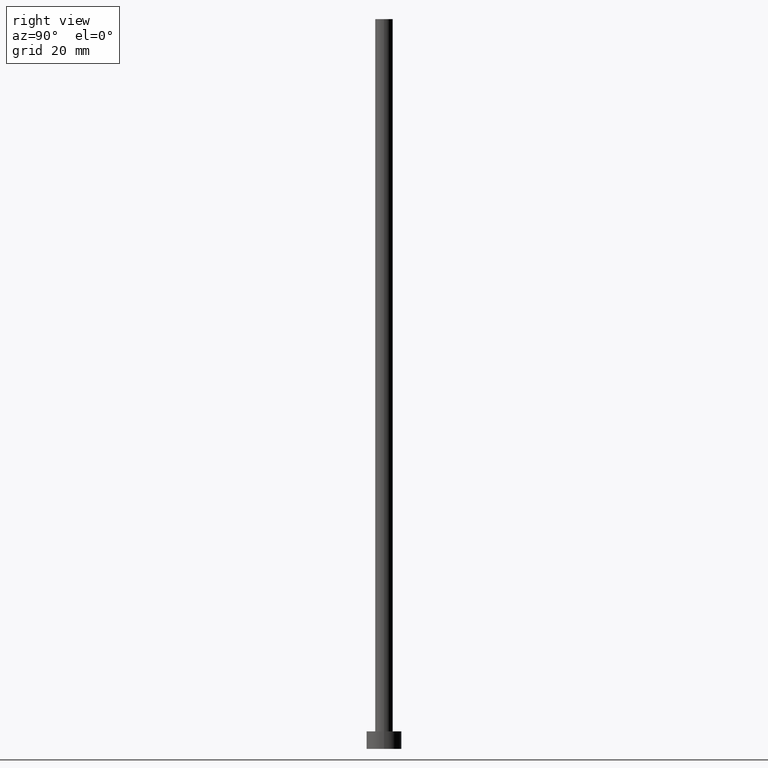
[diagram: clean part render]
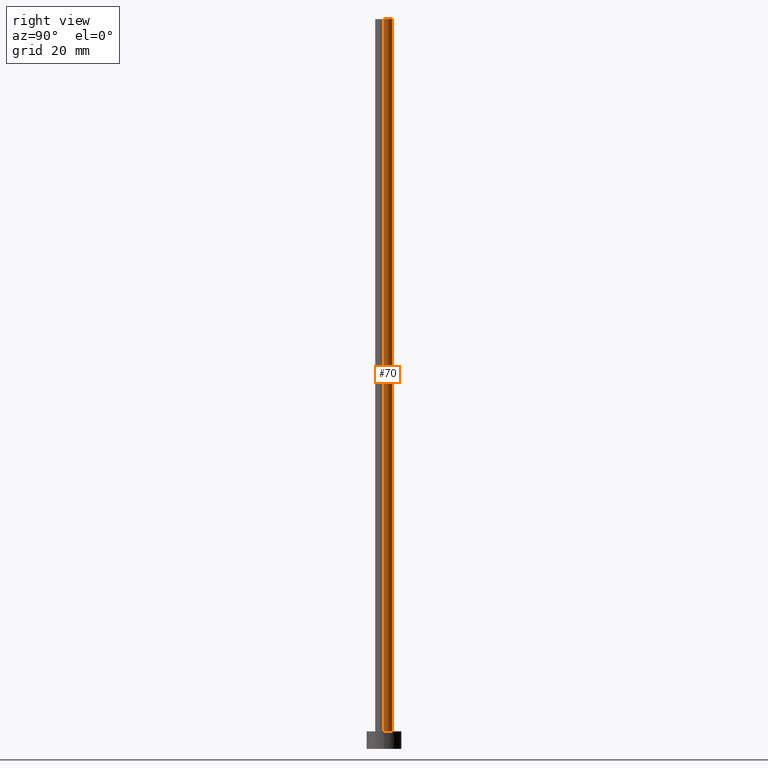
[diagram: same view with one face highlighted and labeled with its STEP entity id]
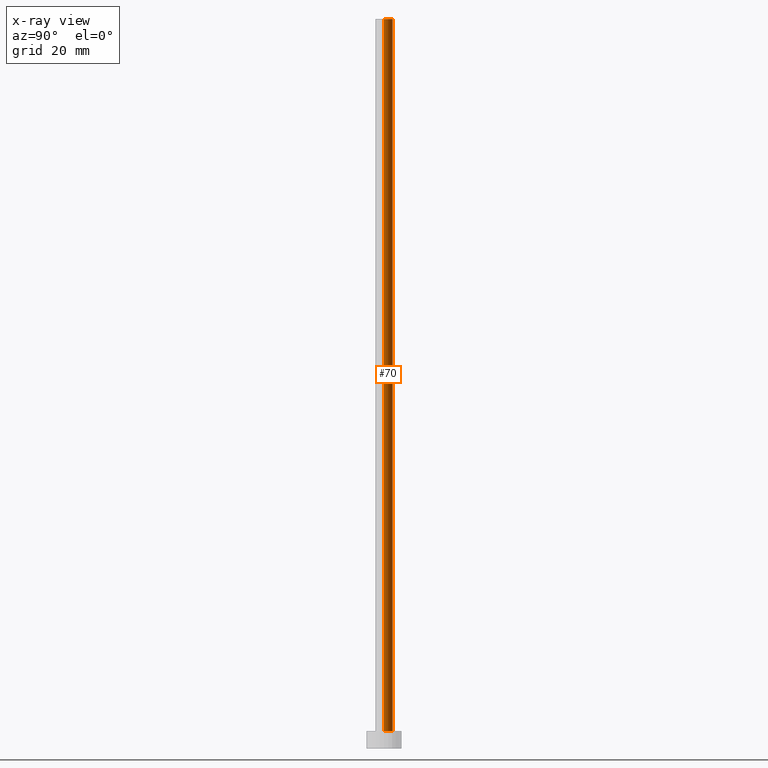
[diagram: x-ray of the same camera — body ghosted, the highlighted face saturated]
A machine part, right view. The second image highlights one B-rep face of the part: STEP entity #70.
The next image is the same camera in x-ray: the body ghosted, the highlighted face saturated — about 0% of this face is hidden behind the body in this view.
In plain terms, the highlighted cylindrical surface (edge-blend (fillet) strip) has radius 1.5 mm, axis along (-0, -0, -1).
Its self-contained STEP definition (entity closure, byte-faithful):
#11 = CIRCLE ( 'NONE', #82, 1.500000000000000222 ) ;
#15 = DIRECTION ( 'NONE',  ( 0.000000000000000000, 0.000000000000000000, 1.000000000000000000 ) ) ;
#17 = DIRECTION ( 'NONE',  ( 1.000000000000000000, 0.000000000000000000, 0.000000000000000000 ) ) ;
#18 = FACE_OUTER_BOUND ( 'NONE', #235, .T. ) ;
#26 = VERTEX_POINT ( 'NONE', #36 ) ;
#36 = CARTESIAN_POINT ( 'NONE',  ( 1.500000000000000222, 1.836970198721029934E-16, 125.0000000000000000 ) ) ;
#38 = DIRECTION ( 'NONE',  ( -0.000000000000000000, -0.000000000000000000, -1.000000000000000000 ) ) ;
#39 = ORIENTED_EDGE ( 'NONE', *, *, #201, .F. ) ;
#55 = EDGE_CURVE ( 'NONE', #26, #160, #11, .T. ) ;
#60 = LINE ( 'NONE', #93, #236 ) ;
#67 = CIRCLE ( 'NONE', #212, 1.500000000000000222 ) ;
#70 = ADVANCED_FACE ( 'NONE', ( #18 ), #89, .T. ) ;
#79 = VERTEX_POINT ( 'NONE', #105 ) ;
#82 = AXIS2_PLACEMENT_3D ( 'NONE', #192, #15, #17 ) ;
#89 = CYLINDRICAL_SURFACE ( 'NONE', #106, 1.500000000000000222 ) ;
#90 = DIRECTION ( 'NONE',  ( -0.000000000000000000, -0.000000000000000000, -1.000000000000000000 ) ) ;
#91 = CARTESIAN_POINT ( 'NONE',  ( 0.000000000000000000, 0.000000000000000000, 3.000000000000000000 ) ) ;
#93 = CARTESIAN_POINT ( 'NONE',  ( 1.500000000000000222, 1.836970198721029934E-16, 125.0000000000000000 ) ) ;
#105 = CARTESIAN_POINT ( 'NONE',  ( -1.500000000000000222, 0.000000000000000000, 3.000000000000000000 ) ) ;
#106 = AXIS2_PLACEMENT_3D ( 'NONE', #190, #90, #131 ) ;
#120 = LINE ( 'NONE', #181, #146 ) ;
#131 = DIRECTION ( 'NONE',  ( -1.000000000000000000, 0.000000000000000000, 0.000000000000000000 ) ) ;
#142 = ORIENTED_EDGE ( 'NONE', *, *, #210, .T. ) ;
#143 = CARTESIAN_POINT ( 'NONE',  ( 1.500000000000000222, 1.836970198721029934E-16, 3.000000000000000000 ) ) ;
#145 = DIRECTION ( 'NONE',  ( 0.000000000000000000, 0.000000000000000000, 1.000000000000000000 ) ) ;
#146 = VECTOR ( 'NONE', #243, 1000.000000000000000 ) ;
#148 = VERTEX_POINT ( 'NONE', #143 ) ;
#158 = CARTESIAN_POINT ( 'NONE',  ( -1.500000000000000222, 0.000000000000000000, 125.0000000000000000 ) ) ;
#160 = VERTEX_POINT ( 'NONE', #158 ) ;
#181 = CARTESIAN_POINT ( 'NONE',  ( -1.500000000000000222, 0.000000000000000000, 125.0000000000000000 ) ) ;
#190 = CARTESIAN_POINT ( 'NONE',  ( 0.000000000000000000, 0.000000000000000000, 125.0000000000000000 ) ) ;
#192 = CARTESIAN_POINT ( 'NONE',  ( 0.000000000000000000, 0.000000000000000000, 125.0000000000000000 ) ) ;
#200 = DIRECTION ( 'NONE',  ( 1.000000000000000000, 0.000000000000000000, 0.000000000000000000 ) ) ;
#201 = EDGE_CURVE ( 'NONE', #160, #79, #120, .T. ) ;
#210 = EDGE_CURVE ( 'NONE', #26, #148, #60, .T. ) ;
#212 = AXIS2_PLACEMENT_3D ( 'NONE', #91, #145, #200 ) ;
#216 = ORIENTED_EDGE ( 'NONE', *, *, #55, .F. ) ;
#235 = EDGE_LOOP ( 'NONE', ( #216, #142, #250, #39 ) ) ;
#236 = VECTOR ( 'NONE', #38, 1000.000000000000000 ) ;
#243 = DIRECTION ( 'NONE',  ( -0.000000000000000000, -0.000000000000000000, -1.000000000000000000 ) ) ;
#245 = EDGE_CURVE ( 'NONE', #148, #79, #67, .T. ) ;
#250 = ORIENTED_EDGE ( 'NONE', *, *, #245, .T. ) ;